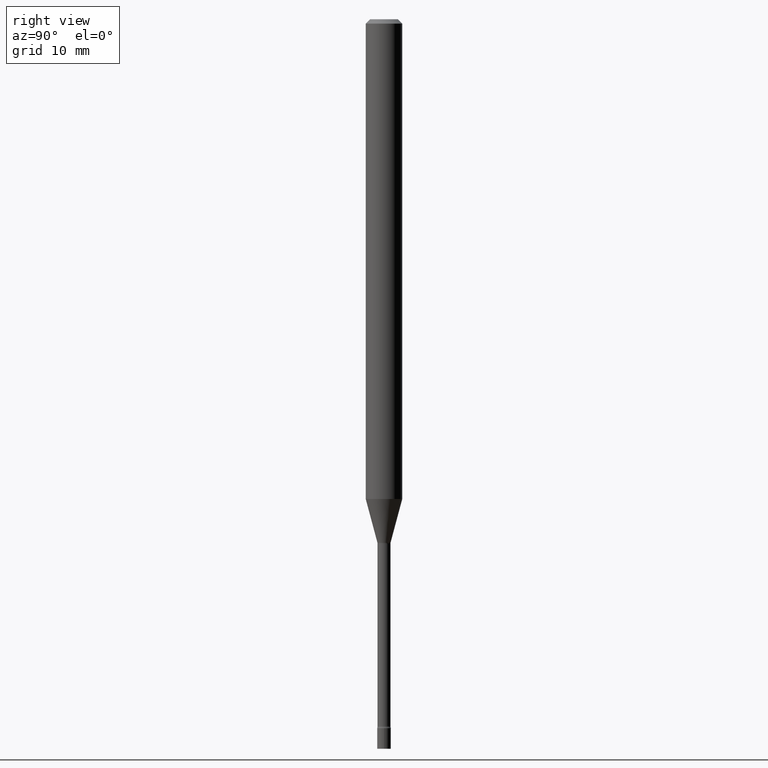
[diagram: clean part render]
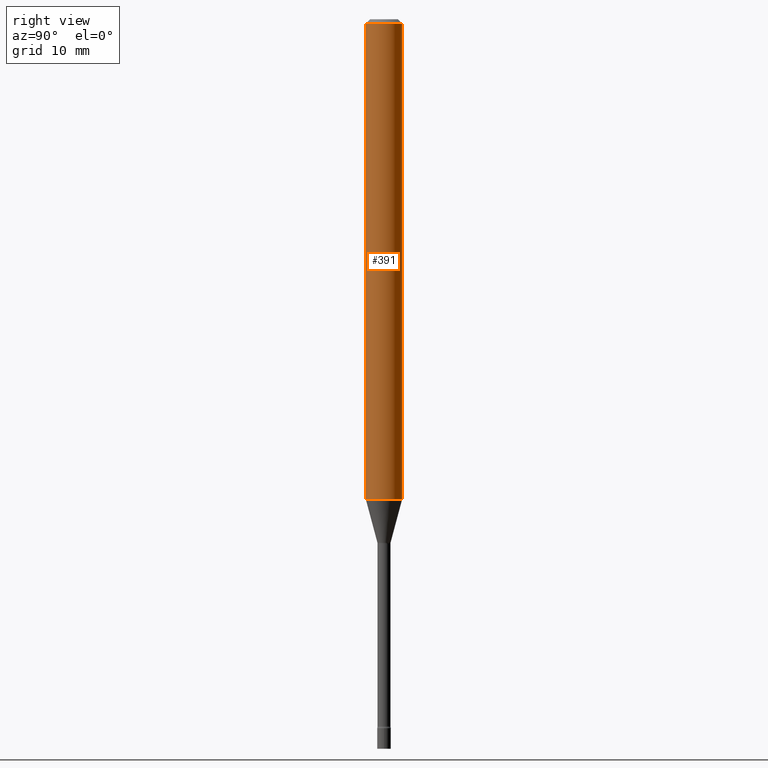
[diagram: same view with one face highlighted and labeled with its STEP entity id]
A machine part, right view. The second image highlights one B-rep face of the part: STEP entity #391.
In plain terms, the highlighted cylindrical surface (edge-blend (fillet) strip) has radius 1.5875 mm, axis along (-0, 0, 1).
Its self-contained STEP definition (entity closure, byte-faithful):
#4 = CIRCLE ( 'NONE', #86, 0.06250000000000000000 ) ;
#6 = EDGE_CURVE ( 'NONE', #100, #479, #79, .T. ) ;
#54 = ORIENTED_EDGE ( 'NONE', *, *, #487, .F. ) ;
#61 = ORIENTED_EDGE ( 'NONE', *, *, #366, .T. ) ;
#79 = CIRCLE ( 'NONE', #110, 0.06250000000000000000 ) ;
#86 = AXIS2_PLACEMENT_3D ( 'NONE', #330, #295, #319 ) ;
#90 = CARTESIAN_POINT ( 'NONE',  ( 0.000000000000000000, 0.000000000000000000, 0.000000000000000000 ) ) ;
#100 = VERTEX_POINT ( 'NONE', #291 ) ;
#110 = AXIS2_PLACEMENT_3D ( 'NONE', #287, #320, #362 ) ;
#225 = ORIENTED_EDGE ( 'NONE', *, *, #421, .T. ) ;
#247 = DIRECTION ( 'NONE',  ( -2.445458238190760089E-29, 3.491496472812585621E-15, 1.000000000000000000 ) ) ;
#287 = CARTESIAN_POINT ( 'NONE',  ( 3.668187357286147315E-31, -5.237244709218889278E-17, -0.01500000000000003067 ) ) ;
#288 = VERTEX_POINT ( 'NONE', #420 ) ;
#291 = CARTESIAN_POINT ( 'NONE',  ( -4.364351673553912750E-16, -0.06250000000000005551, -0.01499999999999981209 ) ) ;
#295 = DIRECTION ( 'NONE',  ( -2.445458238190760089E-29, 3.491496472812585621E-15, 1.000000000000000000 ) ) ;
#299 = DIRECTION ( 'NONE',  ( -2.445458238190760089E-29, 3.491496472812585621E-15, 1.000000000000000000 ) ) ;
#319 = DIRECTION ( 'NONE',  ( -6.982962677686265922E-15, -1.000000000000000000, 4.370956789862821150E-15 ) ) ;
#320 = DIRECTION ( 'NONE',  ( -2.445458238190760089E-29, 3.491496472812585621E-15, 1.000000000000000000 ) ) ;
#325 = CARTESIAN_POINT ( 'NONE',  ( 4.440892098501025523E-16, 0.06249999999999423378, -1.644225147374218210 ) ) ;
#330 = CARTESIAN_POINT ( 'NONE',  ( 4.020883932086697995E-29, -5.740806302566835225E-15, -1.644225147374217988 ) ) ;
#331 = LINE ( 'NONE', #380, #478 ) ;
#336 = CYLINDRICAL_SURFACE ( 'NONE', #457, 0.06250000000000000000 ) ;
#341 = LINE ( 'NONE', #512, #448 ) ;
#362 = DIRECTION ( 'NONE',  ( -6.982962677686265922E-15, -1.000000000000000000, 3.483106191921935554E-15 ) ) ;
#366 = EDGE_CURVE ( 'NONE', #403, #479, #331, .T. ) ;
#380 = CARTESIAN_POINT ( 'NONE',  ( 4.440892098500625669E-16, 0.06250000000000000000, -2.182185295507866013E-16 ) ) ;
#382 = DIRECTION ( 'NONE',  ( -2.445458238190760089E-29, 3.491496472812585621E-15, 1.000000000000000000 ) ) ;
#391 = ADVANCED_FACE ( 'NONE', ( #454 ), #336, .T. ) ;
#403 = VERTEX_POINT ( 'NONE', #325 ) ;
#416 = CARTESIAN_POINT ( 'NONE',  ( 4.440892098501030453E-16, 0.06249999999999995143, -0.01500000000000024751 ) ) ;
#420 = CARTESIAN_POINT ( 'NONE',  ( -4.364351673553515854E-16, -0.06250000000000575928, -1.644225147374217544 ) ) ;
#421 = EDGE_CURVE ( 'NONE', #288, #403, #4, .T. ) ;
#448 = VECTOR ( 'NONE', #382, 39.37007874015748143 ) ;
#454 = FACE_OUTER_BOUND ( 'NONE', #510, .T. ) ;
#457 = AXIS2_PLACEMENT_3D ( 'NONE', #90, #247, #505 ) ;
#478 = VECTOR ( 'NONE', #299, 39.37007874015748143 ) ;
#479 = VERTEX_POINT ( 'NONE', #416 ) ;
#487 = EDGE_CURVE ( 'NONE', #288, #100, #341, .T. ) ;
#504 = ORIENTED_EDGE ( 'NONE', *, *, #6, .F. ) ;
#505 = DIRECTION ( 'NONE',  ( -6.982962677686265922E-15, -1.000000000000000000, 3.491496472812585621E-15 ) ) ;
#510 = EDGE_LOOP ( 'NONE', ( #225, #61, #504, #54 ) ) ;
#512 = CARTESIAN_POINT ( 'NONE',  ( -4.364351673553916201E-16, -0.06250000000000000000, 2.182185295507866013E-16 ) ) ;